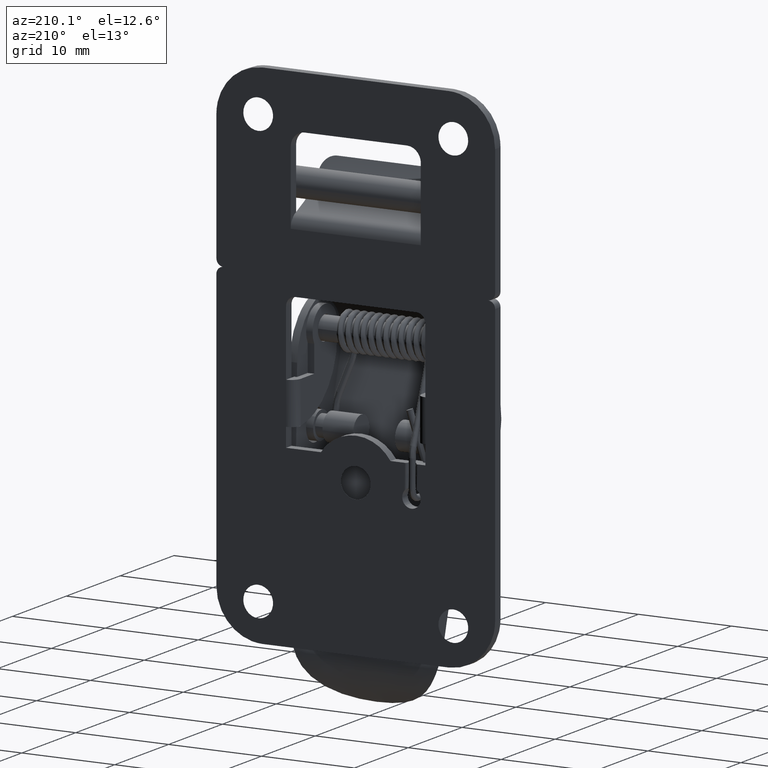
[diagram: clean part render]
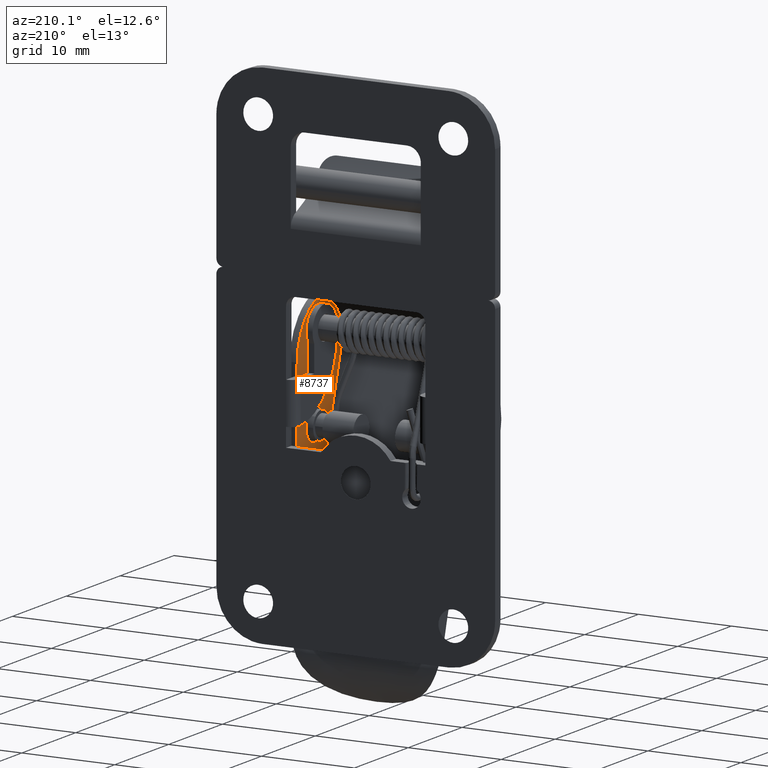
[diagram: same view with one face highlighted and labeled with its STEP entity id]
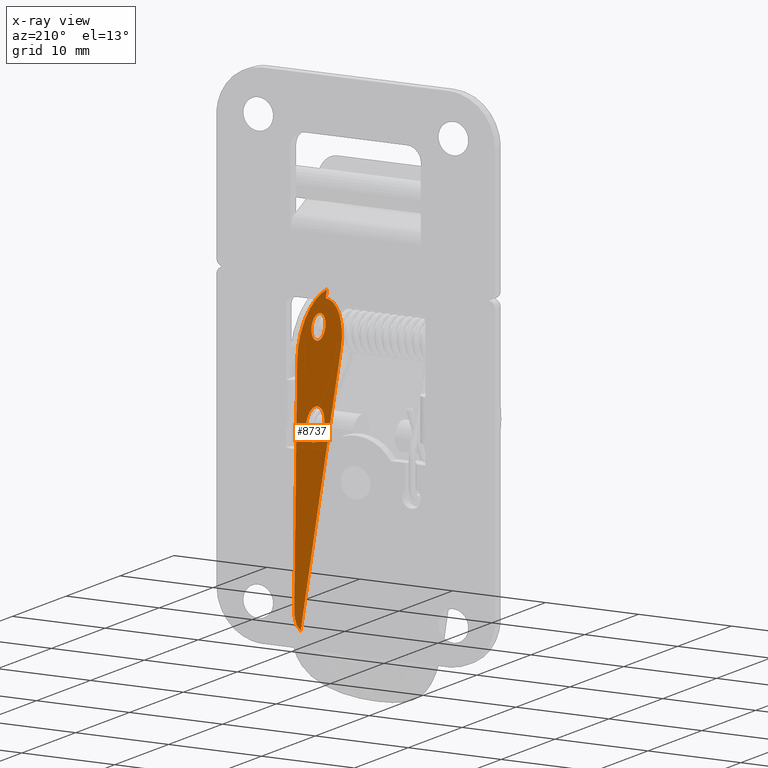
[diagram: x-ray of the same camera — body ghosted, the highlighted face saturated]
A machine part, auxiliary view. The second image highlights one B-rep face of the part: STEP entity #8737.
The next image is the same camera in x-ray: the body ghosted, the highlighted face saturated — about 2% of this face is hidden behind the body in this view.
In plain terms, the highlighted face is a freeform B-spline surface patch.
Its self-contained STEP definition (entity closure, byte-faithful):
#6633=CARTESIAN_POINT('',(-0.702147436525195,-7.200000000000000,-23.781784603765161));
#6634=VERTEX_POINT('',#6633);
#6635=CARTESIAN_POINT('',(-2.388999999999895,-7.200000000000000,-25.270766999999900));
#6636=VERTEX_POINT('',#6635);
#6637=CARTESIAN_POINT('',(-0.702147436525195,-7.200000000000000,-23.781784603765157));
#6638=CARTESIAN_POINT('',(-0.888412380156092,-7.200000000000000,-25.270766999999903));
#6639=CARTESIAN_POINT('',(-2.388999999999895,-7.200000000000000,-25.270766999999900));
#6647=(BOUNDED_CURVE()B_SPLINE_CURVE(2,(#6637,#6638,#6639),.UNSPECIFIED.,.F.,.U.)B_SPLINE_CURVE_WITH_KNOTS((3,3),(0.271473929016600,0.500000000000000),.UNSPECIFIED.)CURVE()GEOMETRIC_REPRESENTATION_ITEM()RATIONAL_B_SPLINE_CURVE((0.954005430185646,0.732265053947522,1.0))REPRESENTATION_ITEM(''));
#6648=EDGE_CURVE('',#6634,#6636,#6647,.T.);
#6650=CARTESIAN_POINT('',(-4.088935269206219,-7.199999999999999,-23.555931889335621));
#6651=VERTEX_POINT('',#6650);
#6652=CARTESIAN_POINT('',(-2.388999999999895,-7.200000000000000,-25.270766999999900));
#6653=CARTESIAN_POINT('',(-4.088999999999896,-7.200000000000000,-25.270766999999903));
#6654=CARTESIAN_POINT('',(-4.088999999999895,-7.200000000000000,-23.570766999999901));
#6655=CARTESIAN_POINT('',(-4.088999999999896,-7.200000000000001,-23.563349303287648));
#6656=CARTESIAN_POINT('',(-4.088935269206219,-7.199999999999999,-23.555931889335621));
#6664=(BOUNDED_CURVE()B_SPLINE_CURVE(2,(#6652,#6653,#6654,#6655,#6656),.UNSPECIFIED.,.F.,.U.)B_SPLINE_CURVE_WITH_KNOTS((3,2,3),(0.500000000000000,0.750000000000000,0.751539894400690),.UNSPECIFIED.)CURVE()GEOMETRIC_REPRESENTATION_ITEM()RATIONAL_B_SPLINE_CURVE((1.0,0.707106781186548,1.0,0.998195901489397,0.996414027948352))REPRESENTATION_ITEM(''));
#6665=EDGE_CURVE('',#6636,#6651,#6664,.T.);
#6736=CARTESIAN_POINT('',(-2.388999999999895,-7.200000000000000,-21.870766999999901));
#6737=VERTEX_POINT('',#6736);
#6738=CARTESIAN_POINT('',(-2.388999999999895,-7.200000000000000,-21.870766999999901));
#6739=CARTESIAN_POINT('',(-0.688999999999895,-7.200000000000000,-21.870766999999908));
#6740=CARTESIAN_POINT('',(-0.688999999999895,-7.200000000000000,-23.570766999999901));
#6741=CARTESIAN_POINT('',(-0.688999999999895,-7.200000000000000,-23.676685377039085));
#6742=CARTESIAN_POINT('',(-0.702147436525195,-7.200000000000000,-23.781784603765157));
#6750=(BOUNDED_CURVE()B_SPLINE_CURVE(2,(#6738,#6739,#6740,#6741,#6742),.UNSPECIFIED.,.F.,.U.)B_SPLINE_CURVE_WITH_KNOTS((3,2,3),(0.0,0.250000000000000,0.271473929016600),.UNSPECIFIED.)CURVE()GEOMETRIC_REPRESENTATION_ITEM()RATIONAL_B_SPLINE_CURVE((1.0,0.707106781186548,1.0,0.974841727239026,0.954005430185646))REPRESENTATION_ITEM(''));
#6751=EDGE_CURVE('',#6737,#6634,#6750,.T.);
#6785=CARTESIAN_POINT('',(-4.088935269206219,-7.199999999999999,-23.555931889335614));
#6786=CARTESIAN_POINT('',(-4.074229057382721,-7.200000000000000,-21.870766999999898));
#6787=CARTESIAN_POINT('',(-2.388999999999895,-7.200000000000000,-21.870766999999901));
#6795=(BOUNDED_CURVE()B_SPLINE_CURVE(2,(#6785,#6786,#6787),.UNSPECIFIED.,.F.,.U.)B_SPLINE_CURVE_WITH_KNOTS((3,3),(0.751539894400691,1.0),.UNSPECIFIED.)CURVE()GEOMETRIC_REPRESENTATION_ITEM()RATIONAL_B_SPLINE_CURVE((0.996414027948349,0.708910879697152,1.0))REPRESENTATION_ITEM(''));
#6796=EDGE_CURVE('',#6651,#6737,#6795,.T.);
#7005=CARTESIAN_POINT('',(-1.710053922052626,-7.199999999999999,-14.544133402909230));
#7006=VERTEX_POINT('',#7005);
#7007=CARTESIAN_POINT('',(-3.000000000000115,-7.200000000000000,-15.682766999999920));
#7008=VERTEX_POINT('',#7007);
#7009=CARTESIAN_POINT('',(-1.710053922052626,-7.199999999999999,-14.544133402909226));
#7010=CARTESIAN_POINT('',(-1.852491820173341,-7.200000000000001,-15.682766999999915));
#7011=CARTESIAN_POINT('',(-3.000000000000115,-7.200000000000000,-15.682766999999920));
#7019=(BOUNDED_CURVE()B_SPLINE_CURVE(2,(#7009,#7010,#7011),.UNSPECIFIED.,.F.,.U.)B_SPLINE_CURVE_WITH_KNOTS((3,3),(0.271473929024443,0.500000000000000),.UNSPECIFIED.)CURVE()GEOMETRIC_REPRESENTATION_ITEM()RATIONAL_B_SPLINE_CURVE((0.954005430170426,0.732265053956711,1.0))REPRESENTATION_ITEM(''));
#7020=EDGE_CURVE('',#7006,#7008,#7019,.T.);
#7022=CARTESIAN_POINT('',(-4.299950499980296,-7.200000000000001,-14.371422503480630));
#7023=VERTEX_POINT('',#7022);
#7024=CARTESIAN_POINT('',(-3.000000000000115,-7.200000000000000,-15.682766999999920));
#7025=CARTESIAN_POINT('',(-4.300000000000114,-7.200000000000000,-15.682766999999917));
#7026=CARTESIAN_POINT('',(-4.300000000000114,-7.200000000000000,-14.382766999999919));
#7027=CARTESIAN_POINT('',(-4.300000000000115,-7.200000000000001,-14.377094643561582));
#7028=CARTESIAN_POINT('',(-4.299950499980296,-7.200000000000001,-14.371422503480630));
#7036=(BOUNDED_CURVE()B_SPLINE_CURVE(2,(#7024,#7025,#7026,#7027,#7028),.UNSPECIFIED.,.F.,.U.)B_SPLINE_CURVE_WITH_KNOTS((3,2,3),(0.500000000000000,0.750000000000000,0.751539894435637),.UNSPECIFIED.)CURVE()GEOMETRIC_REPRESENTATION_ITEM()RATIONAL_B_SPLINE_CURVE((1.0,0.707106781186548,1.0,0.998195901448453,0.996414027867473))REPRESENTATION_ITEM(''));
#7037=EDGE_CURVE('',#7008,#7023,#7036,.T.);
#7108=CARTESIAN_POINT('',(-3.000000000000115,-7.200000000000000,-13.082766999999921));
#7109=VERTEX_POINT('',#7108);
#7110=CARTESIAN_POINT('',(-3.000000000000115,-7.200000000000000,-13.082766999999921));
#7111=CARTESIAN_POINT('',(-1.700000000000115,-7.200000000000000,-13.082766999999921));
#7112=CARTESIAN_POINT('',(-1.700000000000115,-7.200000000000000,-14.382766999999919));
#7113=CARTESIAN_POINT('',(-1.700000000000115,-7.200000000000000,-14.463763406001396));
#7114=CARTESIAN_POINT('',(-1.710053922052626,-7.199999999999999,-14.544133402909226));
#7122=(BOUNDED_CURVE()B_SPLINE_CURVE(2,(#7110,#7111,#7112,#7113,#7114),.UNSPECIFIED.,.F.,.U.)B_SPLINE_CURVE_WITH_KNOTS((3,2,3),(0.0,0.250000000000000,0.271473929024443),.UNSPECIFIED.)CURVE()GEOMETRIC_REPRESENTATION_ITEM()RATIONAL_B_SPLINE_CURVE((1.0,0.707106781186548,1.0,0.974841727229837,0.954005430170426))REPRESENTATION_ITEM(''));
#7123=EDGE_CURVE('',#7109,#7006,#7122,.T.);
#7157=CARTESIAN_POINT('',(-4.299950499980296,-7.200000000000001,-14.371422503480625));
#7158=CARTESIAN_POINT('',(-4.288704573037170,-7.200000000000001,-13.082766999999921));
#7159=CARTESIAN_POINT('',(-3.000000000000115,-7.200000000000000,-13.082766999999921));
#7167=(BOUNDED_CURVE()B_SPLINE_CURVE(2,(#7157,#7158,#7159),.UNSPECIFIED.,.F.,.U.)B_SPLINE_CURVE_WITH_KNOTS((3,3),(0.751539894435638,1.0),.UNSPECIFIED.)CURVE()GEOMETRIC_REPRESENTATION_ITEM()RATIONAL_B_SPLINE_CURVE((0.996414027867471,0.708910879738096,1.0))REPRESENTATION_ITEM(''));
#7168=EDGE_CURVE('',#7023,#7109,#7167,.T.);
#7745=CARTESIAN_POINT('',(-4.514615976710690,-7.200000000000000,-11.116638160484600));
#7746=VERTEX_POINT('',#7745);
#7747=CARTESIAN_POINT('',(-4.568462873464779,-7.200000000000000,-11.132064805979420));
#7748=VERTEX_POINT('',#7747);
#7749=CARTESIAN_POINT('',(-4.514615976710688,-7.200000000000000,-11.116638160484611));
#7750=CARTESIAN_POINT('',(-4.541582633607137,-7.200000000000000,-11.124200663361075));
#7751=CARTESIAN_POINT('',(-4.568462873464777,-7.200000000000000,-11.132064805979430));
#7759=(BOUNDED_CURVE()B_SPLINE_CURVE(2,(#7749,#7750,#7751),.UNSPECIFIED.,.F.,.U.)CURVE()GEOMETRIC_REPRESENTATION_ITEM()QUASI_UNIFORM_CURVE()RATIONAL_B_SPLINE_CURVE((1.0,0.999984310267286,1.0))REPRESENTATION_ITEM(''));
#7760=EDGE_CURVE('',#7746,#7748,#7759,.T.);
#8005=CARTESIAN_POINT('',(-4.343772256501095,-7.200000000000000,-11.899869156740960));
#8006=VERTEX_POINT('',#8005);
#8012=CARTESIAN_POINT('',(-7.195201284380480,-7.200000000000000,-17.110078032106749));
#8013=VERTEX_POINT('',#8012);
#8014=CARTESIAN_POINT('',(-4.343772256501088,-7.200000000000000,-11.899869156740980));
#8015=CARTESIAN_POINT('',(-6.013443583121737,-7.200000000000000,-12.388324487758561));
#8016=CARTESIAN_POINT('',(-6.848622891889521,-7.200000000000000,-13.914386895245499));
#8017=CARTESIAN_POINT('',(-7.683802200657305,-7.200000000000000,-15.440449302732436));
#8018=CARTESIAN_POINT('',(-7.195201284380488,-7.200000000000000,-17.110078032106749));
#8026=(BOUNDED_CURVE()B_SPLINE_CURVE(2,(#8014,#8015,#8016,#8017,#8018),.UNSPECIFIED.,.F.,.U.)B_SPLINE_CURVE_WITH_KNOTS((3,2,3),(0.0,0.500000000000000,1.0),.UNSPECIFIED.)CURVE()GEOMETRIC_REPRESENTATION_ITEM()RATIONAL_B_SPLINE_CURVE((1.0,0.923871190264149,1.0,0.923871190264149,1.0))REPRESENTATION_ITEM(''));
#8027=EDGE_CURVE('',#8006,#8013,#8026,.T.);
#8042=CARTESIAN_POINT('',(0.385270534747613,-7.200000000000000,-43.013782077266548));
#8043=VERTEX_POINT('',#8042);
#8057=CARTESIAN_POINT('',(-7.195201284380480,-7.200000000000000,-17.110078032106749));
#8058=CARTESIAN_POINT('',(0.385270534747613,-7.200000000000000,-43.013782077266548));
#8059=QUASI_UNIFORM_CURVE('',1,(#8057,#8058),.UNSPECIFIED.,.F.,.U.);
#8060=EDGE_CURVE('',#8013,#8043,#8059,.T.);
#8075=CARTESIAN_POINT('',(-4.568462873464779,-7.200000000000000,-11.132064805979420));
#8076=CARTESIAN_POINT('',(-4.343772256501095,-7.200000000000000,-11.899869156740960));
#8077=QUASI_UNIFORM_CURVE('',1,(#8075,#8076),.UNSPECIFIED.,.F.,.U.);
#8078=EDGE_CURVE('',#7748,#8006,#8077,.T.);
#8094=CARTESIAN_POINT('',(0.298848642727758,-7.200000000000000,-42.718251507840897));
#8095=VERTEX_POINT('',#8094);
#8096=CARTESIAN_POINT('',(0.368000000000050,-7.200000000000000,-42.953766999999900));
#8097=VERTEX_POINT('',#8096);
#8098=CARTESIAN_POINT('',(0.298848642727758,-7.200000000000000,-42.718251507840897));
#8099=CARTESIAN_POINT('',(0.368000000000050,-7.200000000000000,-42.953766999999900));
#8100=QUASI_UNIFORM_CURVE('',1,(#8098,#8099),.UNSPECIFIED.,.F.,.U.);
#8101=EDGE_CURVE('',#8095,#8097,#8100,.T.);
#8301=CARTESIAN_POINT('',(0.961625135864375,-7.200000000000000,-17.026698161461599));
#8302=VERTEX_POINT('',#8301);
#8303=CARTESIAN_POINT('',(0.961625135864371,-7.200000000000000,-17.026698161461599));
#8304=CARTESIAN_POINT('',(0.900858570880952,-7.200000000000000,-11.590841232367858));
#8305=CARTESIAN_POINT('',(-4.514615976710689,-7.200000000000000,-11.116638160484611));
#8313=(BOUNDED_CURVE()B_SPLINE_CURVE(2,(#8303,#8304,#8305),.UNSPECIFIED.,.F.,.U.)CURVE()GEOMETRIC_REPRESENTATION_ITEM()QUASI_UNIFORM_CURVE()RATIONAL_B_SPLINE_CURVE((1.0,0.741067051911721,1.0))REPRESENTATION_ITEM(''));
#8314=EDGE_CURVE('',#8302,#7746,#8313,.T.);
#8347=CARTESIAN_POINT('',(1.500000000000000,-7.200000000000000,-40.524766999999898));
#8348=VERTEX_POINT('',#8347);
#8354=CARTESIAN_POINT('',(1.500000000000000,-7.200000000000000,-40.524766999999898));
#8355=CARTESIAN_POINT('',(0.961625135864375,-7.200000000000000,-17.026698161461599));
#8356=QUASI_UNIFORM_CURVE('',1,(#8354,#8355),.UNSPECIFIED.,.F.,.U.);
#8357=EDGE_CURVE('',#8348,#8302,#8356,.T.);
#8383=CARTESIAN_POINT('',(0.298848642727751,-7.200000000000000,-42.718251507840890));
#8384=CARTESIAN_POINT('',(1.533077967519417,-7.200000000000001,-41.968497771231327));
#8385=CARTESIAN_POINT('',(1.500000000000003,-7.200000000000000,-40.524766999999898));
#8393=(BOUNDED_CURVE()B_SPLINE_CURVE(2,(#8383,#8384,#8385),.UNSPECIFIED.,.F.,.U.)CURVE()GEOMETRIC_REPRESENTATION_ITEM()QUASI_UNIFORM_CURVE()RATIONAL_B_SPLINE_CURVE((1.0,0.865871795311149,1.0))REPRESENTATION_ITEM(''));
#8394=EDGE_CURVE('',#8095,#8348,#8393,.T.);
#8697=CARTESIAN_POINT('',(-7.805882211031605,-7.200000000000000,-9.523375883664194));
#8698=CARTESIAN_POINT('',(1.943213448414178,-7.199999999999999,-9.523375883664194));
#8699=CARTESIAN_POINT('',(-7.805882211031605,-7.200000000000000,-44.607045209635011));
#8700=CARTESIAN_POINT('',(1.943213448414178,-7.199999999999999,-44.607045209635011));
#8701=B_SPLINE_SURFACE_WITH_KNOTS('',1,1,((#8697,#8699),(#8698,#8700)),.UNSPECIFIED.,.F.,.F.,.U.,(2,2),(2,2),(0.0,9.749095659445784),(0.0,35.083669325970817),.UNSPECIFIED.);
#8702=ORIENTED_EDGE('',*,*,#8314,.F.);
#8703=ORIENTED_EDGE('',*,*,#8357,.F.);
#8704=ORIENTED_EDGE('',*,*,#8394,.F.);
#8705=ORIENTED_EDGE('',*,*,#8101,.T.);
#8706=CARTESIAN_POINT('',(0.385270534747603,-7.200000000000000,-43.013782077266562));
#8707=CARTESIAN_POINT('',(0.376797054079174,-7.200000000000000,-42.983727981283856));
#8708=CARTESIAN_POINT('',(0.368000000000046,-7.200000000000000,-42.953766999999907));
#8716=(BOUNDED_CURVE()B_SPLINE_CURVE(2,(#8706,#8707,#8708),.UNSPECIFIED.,.F.,.U.)CURVE()GEOMETRIC_REPRESENTATION_ITEM()QUASI_UNIFORM_CURVE()RATIONAL_B_SPLINE_CURVE((1.0,0.999985465990137,1.0))REPRESENTATION_ITEM(''));
#8717=EDGE_CURVE('',#8043,#8097,#8716,.T.);
#8718=ORIENTED_EDGE('',*,*,#8717,.F.);
#8719=ORIENTED_EDGE('',*,*,#8060,.F.);
#8720=ORIENTED_EDGE('',*,*,#8027,.F.);
#8721=ORIENTED_EDGE('',*,*,#8078,.F.);
#8722=ORIENTED_EDGE('',*,*,#7760,.F.);
#8723=EDGE_LOOP('',(#8702,#8703,#8704,#8705,#8718,#8719,#8720,#8721,#8722));
#8724=FACE_OUTER_BOUND('',#8723,.T.);
#8725=ORIENTED_EDGE('',*,*,#7037,.F.);
#8726=ORIENTED_EDGE('',*,*,#7020,.F.);
#8727=ORIENTED_EDGE('',*,*,#7123,.F.);
#8728=ORIENTED_EDGE('',*,*,#7168,.F.);
#8729=EDGE_LOOP('',(#8725,#8726,#8727,#8728));
#8730=FACE_BOUND('',#8729,.T.);
#8731=ORIENTED_EDGE('',*,*,#6665,.F.);
#8732=ORIENTED_EDGE('',*,*,#6648,.F.);
#8733=ORIENTED_EDGE('',*,*,#6751,.F.);
#8734=ORIENTED_EDGE('',*,*,#6796,.F.);
#8735=EDGE_LOOP('',(#8731,#8732,#8733,#8734));
#8736=FACE_BOUND('',#8735,.T.);
#8737=ADVANCED_FACE('',(#8724,#8730,#8736),#8701,.T.);